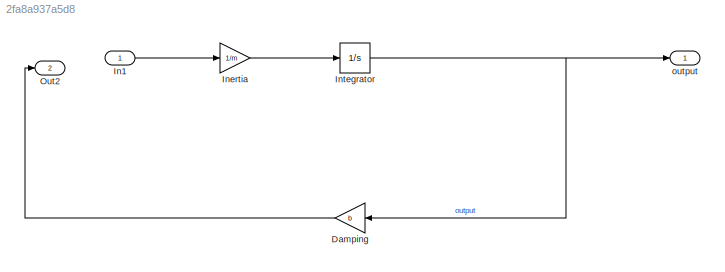
MODEL slx_2fa8a937a5d8
KIND model
CONFIG AbsTol = auto
CONFIG EnableMultiTasking = off
CONFIG FixedStep = auto
CONFIG MaxStep = auto
CONFIG MinStep = auto
CONFIG PreLoadFcn = Kp=22;\nKi=4.5;\nKd=3.6;\nm = 1000 ;\nb = 50 ;\nu = 500;
CONFIG RelTol = 1e-3
CONFIG SampleTimeConstraint = Unconstrained
CONFIG Solver = ode45
CONFIG SolverName = ode45
CONFIG StartTime = 0.0
CONFIG StopTime = 120
BLOCK [Gain] Damping
  Gain = b
  NameLocation = top
BLOCK [Inport] In1
  OutDataTypeStr = double
  PortDimensions = 1
  SampleTime = 0
  SamplingMode = Sample based
  SignalType = real
BLOCK [Gain] Inertia
  Gain = 1/m
BLOCK [Integrator] Integrator
  Ports = [1, 1]
BLOCK [Outport] Out2
  OutDataTypeStr = double
  Port = 2
  PortDimensions = 1
  SampleTime = 0
  SamplingMode = Sample based
  SignalType = real
BLOCK [Outport] output
  OutDataTypeStr = double
  PortDimensions = 1
  SampleTime = 0
  SamplingMode = Sample based
  SignalType = real
LINE Damping:1 -> Out2:1
LINE In1:1 -> Inertia:1
LINE Inertia:1 -> Integrator:1
NET Integrator:1 -> Damping:1, output:1
note: NET lines group one-source signal fan-out (src -> all destinations, sorted); 1:1 wires keep LINE
